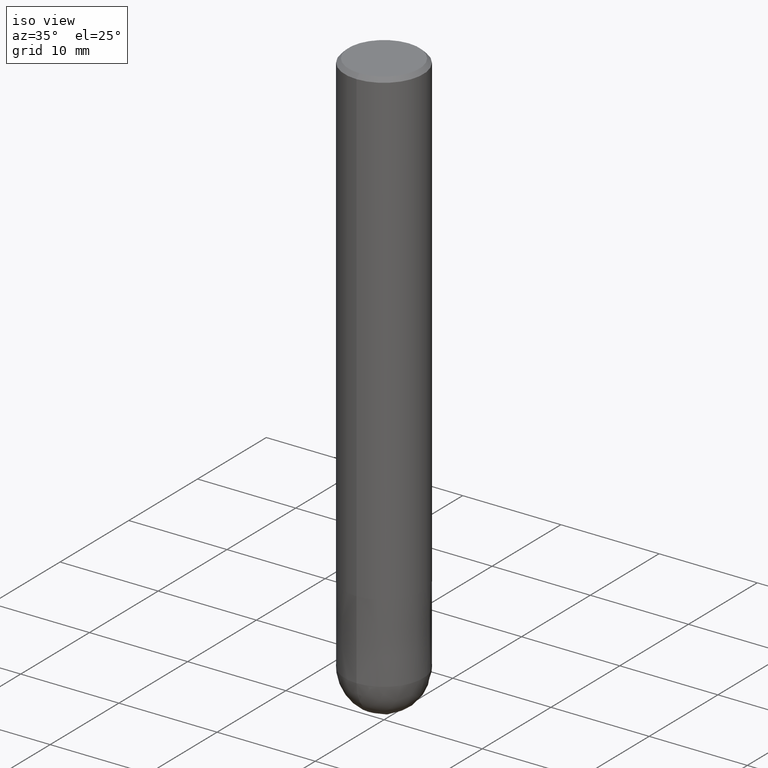
[diagram: clean part render]
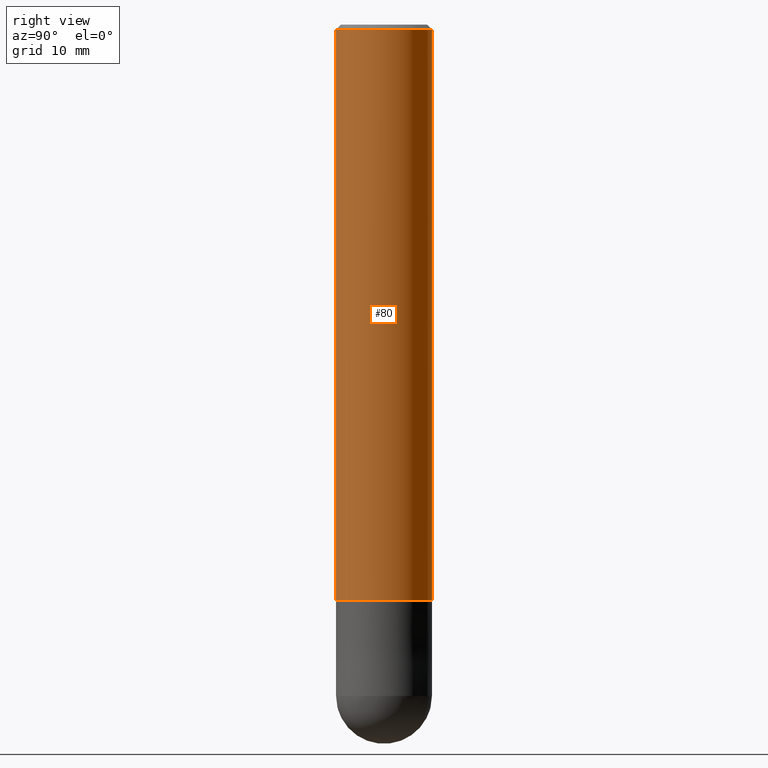
[diagram: tour spotlight — one face highlighted and labeled with its STEP entity id]
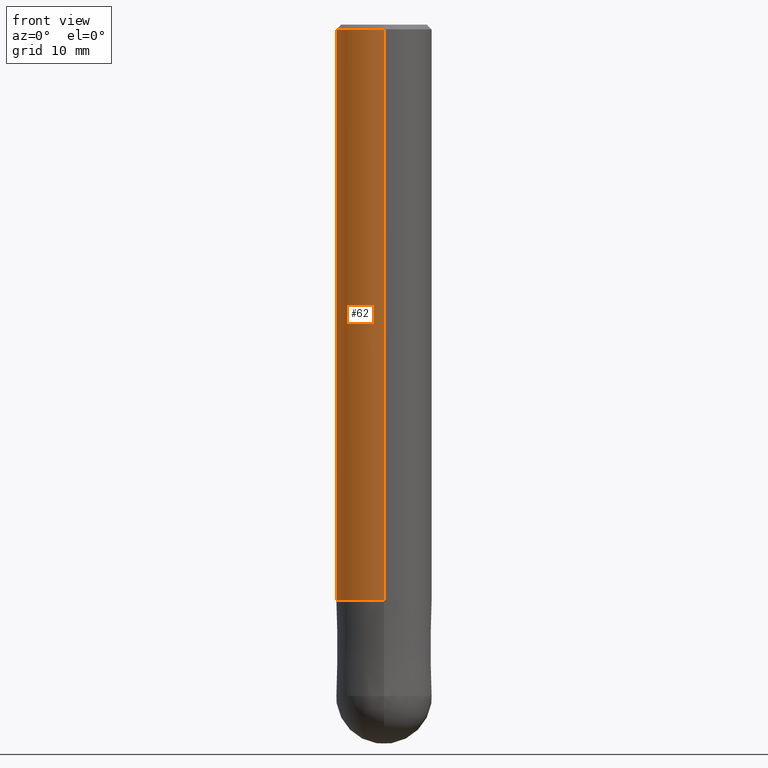
[diagram: tour spotlight — one face highlighted and labeled with its STEP entity id]
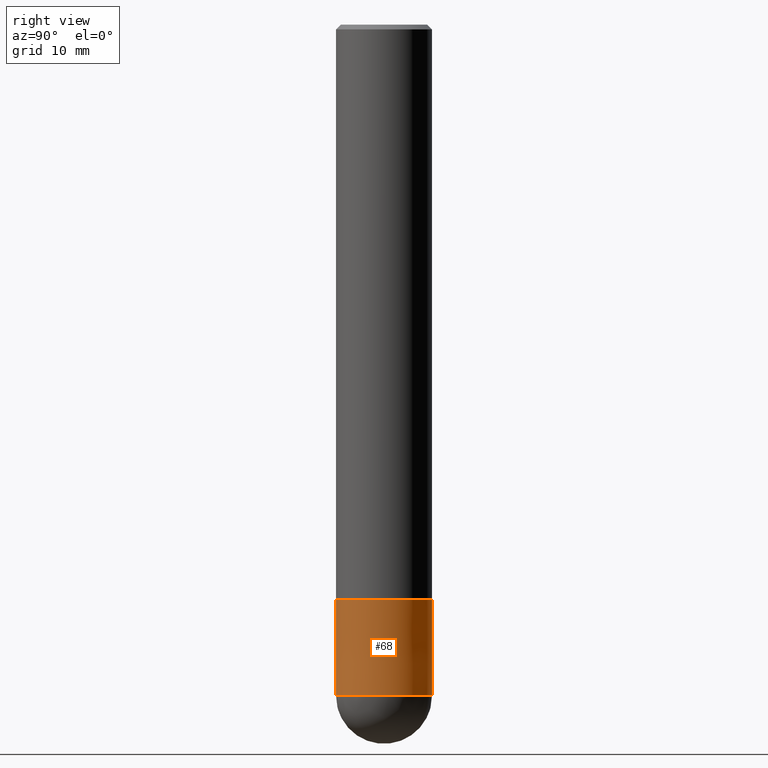
[diagram: tour spotlight — one face highlighted and labeled with its STEP entity id]
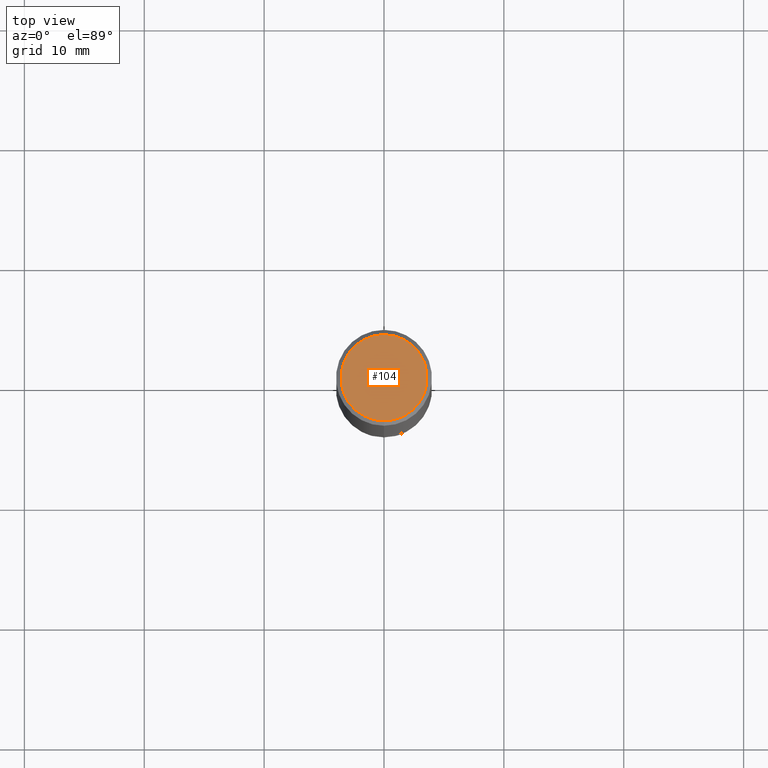
[diagram: tour spotlight — one face highlighted and labeled with its STEP entity id]
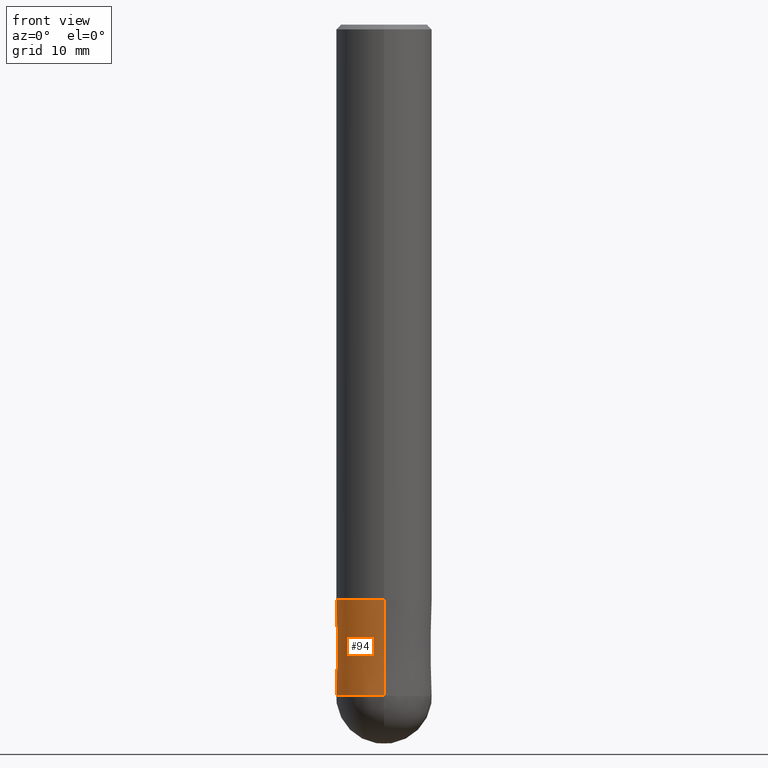
[diagram: tour spotlight — one face highlighted and labeled with its STEP entity id]
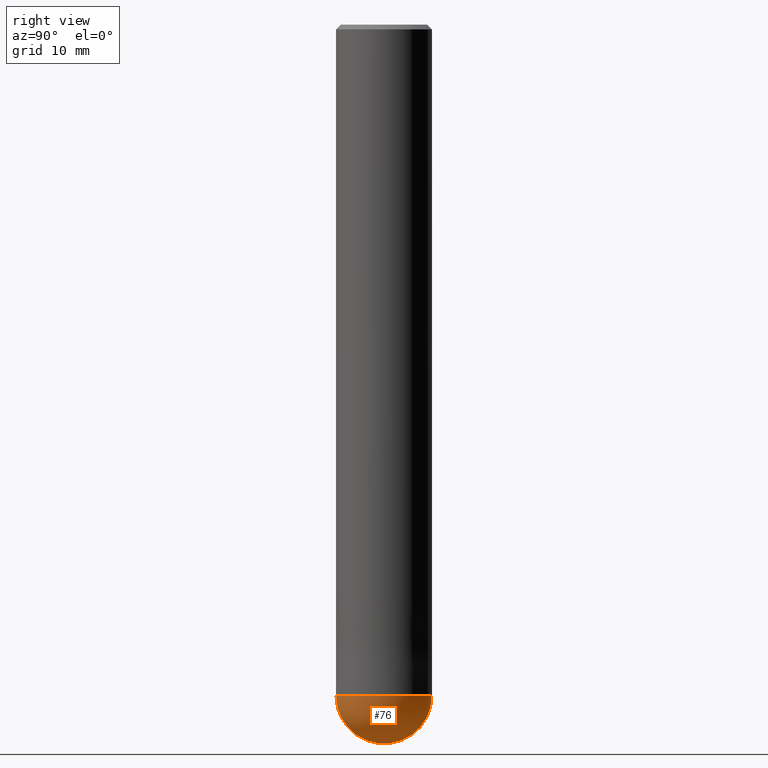
[diagram: tour spotlight — one face highlighted and labeled with its STEP entity id]
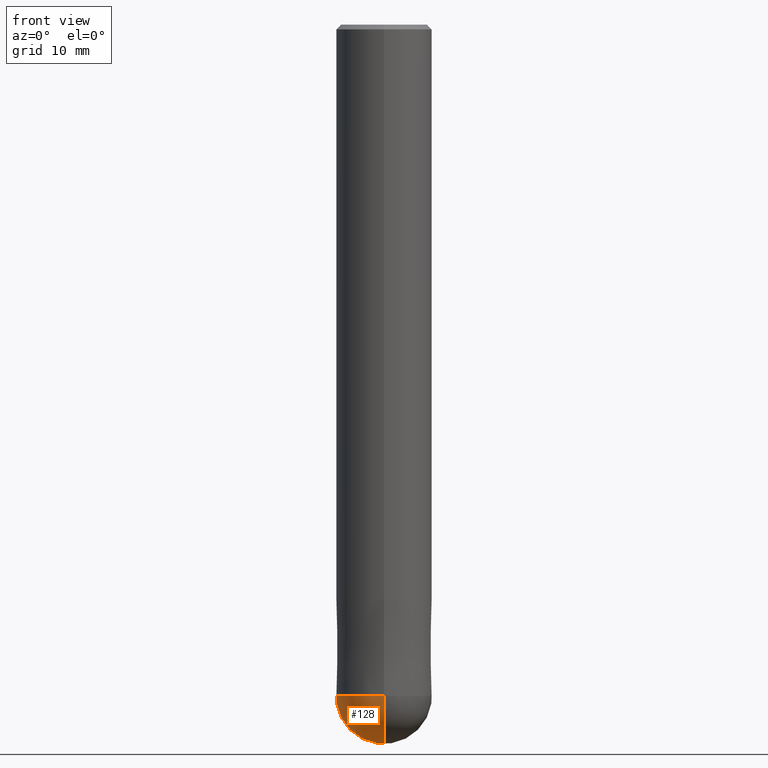
[diagram: tour spotlight — one face highlighted and labeled with its STEP entity id]
A machine part: a face-by-face anatomy tour. The part has 10 B-rep faces; the first image is the clean iso view, then the 7 largest visible faces are spotlighted one at a time (largest first), each with its STEP entity span.

Face 1 — right view, entity #80. In plain terms, the highlighted cylindrical surface (partial cylindrical patch) has radius 4 mm, axis along (-0, -0, 1).
Definition (entity closure, byte-faithful):
#66=EDGE_CURVE('',#88,#96,#159,.T.);
#72=EDGE_CURVE('',#108,#88,#166,.T.);
#78=EDGE_CURVE('',#108,#98,#173,.T.);
#80=ADVANCED_FACE('',(#175),#176,.T.);
#88=VERTEX_POINT('',#186);
#96=VERTEX_POINT('',#195);
#98=VERTEX_POINT('',#197);
#100=EDGE_CURVE('',#96,#98,#199,.T.);
#108=VERTEX_POINT('',#208);
#159=CIRCLE('',#254,4.0);
#166=LINE('',#261,#262);
#173=CIRCLE('',#272,4.0);
#175=FACE_OUTER_BOUND('',#274,.T.);
#176=CYLINDRICAL_SURFACE('',#275,4.0);
#186=CARTESIAN_POINT('',(0.0,4.0,-48.0));
#195=CARTESIAN_POINT('',(4.89842541528951E-016,-4.0,-48.0));
#197=CARTESIAN_POINT('',(4.89842541528951E-016,-4.0,-0.399999999999999));
#199=LINE('',#301,#302);
#208=CARTESIAN_POINT('',(0.0,4.0,-0.399999999999999));
#254=AXIS2_PLACEMENT_3D('',#367,#368,#369);
#261=CARTESIAN_POINT('',(-4.89842541528951E-016,4.0,-24.2));
#262=VECTOR('',#379,1.0);
#272=AXIS2_PLACEMENT_3D('',#387,#388,#389);
#274=EDGE_LOOP('',(#391,#392,#393,#394));
#275=AXIS2_PLACEMENT_3D('',#395,#396,#397);
#301=CARTESIAN_POINT('',(4.89842541528951E-016,-4.0,-24.2));
#302=VECTOR('',#415,1.0);
#367=CARTESIAN_POINT('',(0.0,0.0,-48.0));
#368=DIRECTION('',(0.0,0.0,-1.0));
#369=DIRECTION('',(0.0,1.0,0.0));
#379=DIRECTION('',(0.0,0.0,-1.0));
#387=CARTESIAN_POINT('',(0.0,0.0,-0.399999999999999));
#388=DIRECTION('',(0.0,0.0,-1.0));
#389=DIRECTION('',(0.0,1.0,0.0));
#391=ORIENTED_EDGE('',*,*,#72,.F.);
#392=ORIENTED_EDGE('',*,*,#78,.T.);
#393=ORIENTED_EDGE('',*,*,#100,.F.);
#394=ORIENTED_EDGE('',*,*,#66,.F.);
#395=CARTESIAN_POINT('',(0.0,0.0,-24.2));
#396=DIRECTION('',(-0.0,-0.0,1.0));
#397=DIRECTION('',(0.0,1.0,0.0));
#415=DIRECTION('',(-0.0,-0.0,1.0));

Face 2 — front view, entity #62. In plain terms, the highlighted cylindrical surface (partial cylindrical patch) has radius 4 mm, axis along (-0, -0, 1).
Definition (entity closure, byte-faithful):
#62=ADVANCED_FACE('',(#154),#155,.T.);
#72=EDGE_CURVE('',#108,#88,#166,.T.);
#88=VERTEX_POINT('',#186);
#96=VERTEX_POINT('',#195);
#98=VERTEX_POINT('',#197);
#100=EDGE_CURVE('',#96,#98,#199,.T.);
#108=VERTEX_POINT('',#208);
#122=EDGE_CURVE('',#96,#88,#223,.T.);
#130=EDGE_CURVE('',#98,#108,#232,.T.);
#154=FACE_OUTER_BOUND('',#247,.T.);
#155=CYLINDRICAL_SURFACE('',#248,4.0);
#166=LINE('',#261,#262);
#186=CARTESIAN_POINT('',(0.0,4.0,-48.0));
#195=CARTESIAN_POINT('',(4.89842541528951E-016,-4.0,-48.0));
#197=CARTESIAN_POINT('',(4.89842541528951E-016,-4.0,-0.399999999999999));
#199=LINE('',#301,#302);
#208=CARTESIAN_POINT('',(0.0,4.0,-0.399999999999999));
#223=CIRCLE('',#335,4.0);
#232=CIRCLE('',#346,4.0);
#247=EDGE_LOOP('',(#357,#358,#359,#360));
#248=AXIS2_PLACEMENT_3D('',#361,#362,#363);
#261=CARTESIAN_POINT('',(-4.89842541528951E-016,4.0,-24.2));
#262=VECTOR('',#379,1.0);
#301=CARTESIAN_POINT('',(4.89842541528951E-016,-4.0,-24.2));
#302=VECTOR('',#415,1.0);
#335=AXIS2_PLACEMENT_3D('',#444,#445,#446);
#346=AXIS2_PLACEMENT_3D('',#456,#457,#458);
#357=ORIENTED_EDGE('',*,*,#72,.T.);
#358=ORIENTED_EDGE('',*,*,#122,.F.);
#359=ORIENTED_EDGE('',*,*,#100,.T.);
#360=ORIENTED_EDGE('',*,*,#130,.T.);
#361=CARTESIAN_POINT('',(0.0,0.0,-24.2));
#362=DIRECTION('',(-0.0,-0.0,1.0));
#363=DIRECTION('',(0.0,1.0,0.0));
#379=DIRECTION('',(0.0,0.0,-1.0));
#415=DIRECTION('',(-0.0,-0.0,1.0));
#444=CARTESIAN_POINT('',(0.0,0.0,-48.0));
#445=DIRECTION('',(0.0,0.0,-1.0));
#446=DIRECTION('',(0.0,1.0,0.0));
#456=CARTESIAN_POINT('',(0.0,0.0,-0.399999999999999));
#457=DIRECTION('',(0.0,0.0,-1.0));
#458=DIRECTION('',(0.0,1.0,0.0));

Face 3 — right view, entity #68. In plain terms, the highlighted conical surface has half-angle 0.001 deg.
Definition (entity closure, byte-faithful):
#64=EDGE_CURVE('',#90,#136,#157,.T.);
#68=ADVANCED_FACE('',(#161),#162,.T.);
#90=VERTEX_POINT('',#188);
#92=EDGE_CURVE('',#90,#124,#190,.T.);
#102=EDGE_CURVE('',#124,#120,#201,.T.);
#112=EDGE_CURVE('',#120,#136,#212,.T.);
#120=VERTEX_POINT('',#221);
#124=VERTEX_POINT('',#225);
#136=VERTEX_POINT('',#239);
#157=CIRCLE('',#251,3.9999);
#161=FACE_OUTER_BOUND('',#256,.T.);
#162=CONICAL_SURFACE('',#257,3.99995,1.24999999993753E-005);
#188=CARTESIAN_POINT('',(0.0,3.9999,-48.0));
#190=LINE('',#290,#291);
#201=CIRCLE('',#305,4.0);
#212=LINE('',#320,#321);
#221=CARTESIAN_POINT('',(4.89842541528951E-016,-4.0,-56.0));
#225=CARTESIAN_POINT('',(0.0,4.0,-56.0));
#239=CARTESIAN_POINT('',(4.89830295465413E-016,-3.9999,-48.0));
#251=AXIS2_PLACEMENT_3D('',#364,#365,#366);
#256=EDGE_LOOP('',(#371,#372,#373,#374));
#257=AXIS2_PLACEMENT_3D('',#375,#376,#377);
#290=CARTESIAN_POINT('',(-4.89836418497182E-016,3.99995,-52.0));
#291=VECTOR('',#406,1.0);
#305=AXIS2_PLACEMENT_3D('',#416,#417,#418);
#320=CARTESIAN_POINT('',(4.89836418497182E-016,-3.99995,-52.0));
#321=VECTOR('',#429,1.0);
#364=CARTESIAN_POINT('',(0.0,0.0,-48.0));
#365=DIRECTION('',(0.0,0.0,-1.0));
#366=DIRECTION('',(0.0,1.0,0.0));
#371=ORIENTED_EDGE('',*,*,#92,.F.);
#372=ORIENTED_EDGE('',*,*,#64,.T.);
#373=ORIENTED_EDGE('',*,*,#112,.F.);
#374=ORIENTED_EDGE('',*,*,#102,.F.);
#375=CARTESIAN_POINT('',(0.0,0.0,-52.0));
#376=DIRECTION('',(0.0,-0.0,-1.0));
#377=DIRECTION('',(0.0,1.0,0.0));
#406=DIRECTION('',(-1.53075794216161E-021,1.24999999990498E-005,-0.999999999921875));
#416=CARTESIAN_POINT('',(0.0,0.0,-56.0));
#417=DIRECTION('',(0.0,0.0,-1.0));
#418=DIRECTION('',(0.0,1.0,0.0));
#429=DIRECTION('',(-1.53075794216161E-021,1.24999999990498E-005,0.999999999921875));

Face 4 — top view, entity #104. In plain terms, the highlighted planar face has unit normal (-0, 0, 1).
Definition (entity closure, byte-faithful):
#82=VERTEX_POINT('',#178);
#86=VERTEX_POINT('',#184);
#104=ADVANCED_FACE('',(#203),#204,.T.);
#126=EDGE_CURVE('',#82,#86,#227,.T.);
#132=EDGE_CURVE('',#86,#82,#234,.T.);
#178=CARTESIAN_POINT('',(0.0,3.6,0.0));
#184=CARTESIAN_POINT('',(4.40858287376056E-016,-3.6,0.0));
#203=FACE_OUTER_BOUND('',#307,.T.);
#204=PLANE('',#308);
#227=CIRCLE('',#340,3.6);
#234=CIRCLE('',#349,3.6);
#307=EDGE_LOOP('',(#420,#421));
#308=AXIS2_PLACEMENT_3D('',#422,#423,#424);
#340=AXIS2_PLACEMENT_3D('',#447,#448,#449);
#349=AXIS2_PLACEMENT_3D('',#459,#460,#461);
#420=ORIENTED_EDGE('',*,*,#126,.F.);
#421=ORIENTED_EDGE('',*,*,#132,.F.);
#422=CARTESIAN_POINT('',(0.0,1.8,0.0));
#423=DIRECTION('',(-0.0,0.0,1.0));
#424=DIRECTION('',(0.0,-1.0,0.0));
#447=CARTESIAN_POINT('',(0.0,0.0,0.0));
#448=DIRECTION('',(0.0,0.0,-1.0));
#449=DIRECTION('',(0.0,1.0,0.0));
#459=CARTESIAN_POINT('',(0.0,0.0,0.0));
#460=DIRECTION('',(0.0,0.0,-1.0));
#461=DIRECTION('',(0.0,1.0,0.0));

Face 5 — front view, entity #94. In plain terms, the highlighted conical surface has half-angle 0.001 deg.
Definition (entity closure, byte-faithful):
#90=VERTEX_POINT('',#188);
#92=EDGE_CURVE('',#90,#124,#190,.T.);
#94=ADVANCED_FACE('',(#192),#193,.T.);
#110=EDGE_CURVE('',#136,#90,#210,.T.);
#112=EDGE_CURVE('',#120,#136,#212,.T.);
#118=EDGE_CURVE('',#120,#124,#219,.T.);
#120=VERTEX_POINT('',#221);
#124=VERTEX_POINT('',#225);
#136=VERTEX_POINT('',#239);
#188=CARTESIAN_POINT('',(0.0,3.9999,-48.0));
#190=LINE('',#290,#291);
#192=FACE_OUTER_BOUND('',#293,.T.);
#193=CONICAL_SURFACE('',#294,3.99995,1.24999999993753E-005);
#210=CIRCLE('',#317,3.9999);
#212=LINE('',#320,#321);
#219=CIRCLE('',#330,4.0);
#221=CARTESIAN_POINT('',(4.89842541528951E-016,-4.0,-56.0));
#225=CARTESIAN_POINT('',(0.0,4.0,-56.0));
#239=CARTESIAN_POINT('',(4.89830295465413E-016,-3.9999,-48.0));
#290=CARTESIAN_POINT('',(-4.89836418497182E-016,3.99995,-52.0));
#291=VECTOR('',#406,1.0);
#293=EDGE_LOOP('',(#408,#409,#410,#411));
#294=AXIS2_PLACEMENT_3D('',#412,#413,#414);
#317=AXIS2_PLACEMENT_3D('',#426,#427,#428);
#320=CARTESIAN_POINT('',(4.89836418497182E-016,-3.99995,-52.0));
#321=VECTOR('',#429,1.0);
#330=AXIS2_PLACEMENT_3D('',#441,#442,#443);
#406=DIRECTION('',(-1.53075794216161E-021,1.24999999990498E-005,-0.999999999921875));
#408=ORIENTED_EDGE('',*,*,#92,.T.);
#409=ORIENTED_EDGE('',*,*,#118,.F.);
#410=ORIENTED_EDGE('',*,*,#112,.T.);
#411=ORIENTED_EDGE('',*,*,#110,.T.);
#412=CARTESIAN_POINT('',(0.0,0.0,-52.0));
#413=DIRECTION('',(0.0,-0.0,-1.0));
#414=DIRECTION('',(0.0,1.0,0.0));
#426=CARTESIAN_POINT('',(0.0,0.0,-48.0));
#427=DIRECTION('',(0.0,0.0,-1.0));
#428=DIRECTION('',(0.0,1.0,0.0));
#429=DIRECTION('',(-1.53075794216161E-021,1.24999999990498E-005,0.999999999921875));
#441=CARTESIAN_POINT('',(0.0,0.0,-56.0));
#442=DIRECTION('',(0.0,0.0,-1.0));
#443=DIRECTION('',(0.0,1.0,0.0));

Face 6 — right view, entity #76. In plain terms, the highlighted spherical surface has radius 4 mm.
Definition (entity closure, byte-faithful):
#76=ADVANCED_FACE('',(#170),#171,.T.);
#102=EDGE_CURVE('',#124,#120,#201,.T.);
#114=EDGE_CURVE('',#120,#124,#214,.T.);
#120=VERTEX_POINT('',#221);
#124=VERTEX_POINT('',#225);
#170=FACE_OUTER_BOUND('',#268,.T.);
#171=SPHERICAL_SURFACE('',#269,4.00000000000001);
#201=CIRCLE('',#305,4.0);
#214=CIRCLE('',#324,4.00000000000001);
#221=CARTESIAN_POINT('',(4.89842541528951E-016,-4.0,-56.0));
#225=CARTESIAN_POINT('',(0.0,4.0,-56.0));
#268=EDGE_LOOP('',(#382,#383));
#269=AXIS2_PLACEMENT_3D('',#384,#385,#386);
#305=AXIS2_PLACEMENT_3D('',#416,#417,#418);
#324=AXIS2_PLACEMENT_3D('',#430,#431,#432);
#382=ORIENTED_EDGE('',*,*,#114,.T.);
#383=ORIENTED_EDGE('',*,*,#102,.T.);
#384=CARTESIAN_POINT('',(0.0,0.0,-56.0));
#385=DIRECTION('',(0.0,1.0,0.0));
#386=DIRECTION('',(0.0,0.0,-1.0));
#416=CARTESIAN_POINT('',(0.0,0.0,-56.0));
#417=DIRECTION('',(0.0,0.0,-1.0));
#418=DIRECTION('',(0.0,1.0,0.0));
#430=CARTESIAN_POINT('',(0.0,0.0,-56.0));
#431=DIRECTION('',(1.0,0.0,1.22460635382238E-016));
#432=DIRECTION('',(-1.22460635382238E-016,0.0,1.0));

Face 7 — front view, entity #128. In plain terms, the highlighted spherical surface has radius 4 mm.
Definition (entity closure, byte-faithful):
#114=EDGE_CURVE('',#120,#124,#214,.T.);
#118=EDGE_CURVE('',#120,#124,#219,.T.);
#120=VERTEX_POINT('',#221);
#124=VERTEX_POINT('',#225);
#128=ADVANCED_FACE('',(#229),#230,.T.);
#214=CIRCLE('',#324,4.00000000000001);
#219=CIRCLE('',#330,4.0);
#221=CARTESIAN_POINT('',(4.89842541528951E-016,-4.0,-56.0));
#225=CARTESIAN_POINT('',(0.0,4.0,-56.0));
#229=FACE_OUTER_BOUND('',#342,.T.);
#230=SPHERICAL_SURFACE('',#343,4.00000000000001);
#324=AXIS2_PLACEMENT_3D('',#430,#431,#432);
#330=AXIS2_PLACEMENT_3D('',#441,#442,#443);
#342=EDGE_LOOP('',(#451,#452));
#343=AXIS2_PLACEMENT_3D('',#453,#454,#455);
#430=CARTESIAN_POINT('',(0.0,0.0,-56.0));
#431=DIRECTION('',(1.0,0.0,1.22460635382238E-016));
#432=DIRECTION('',(-1.22460635382238E-016,0.0,1.0));
#441=CARTESIAN_POINT('',(0.0,0.0,-56.0));
#442=DIRECTION('',(0.0,0.0,-1.0));
#443=DIRECTION('',(0.0,1.0,0.0));
#451=ORIENTED_EDGE('',*,*,#114,.F.);
#452=ORIENTED_EDGE('',*,*,#118,.T.);
#453=CARTESIAN_POINT('',(0.0,0.0,-56.0));
#454=DIRECTION('',(0.0,1.0,0.0));
#455=DIRECTION('',(0.0,0.0,-1.0));